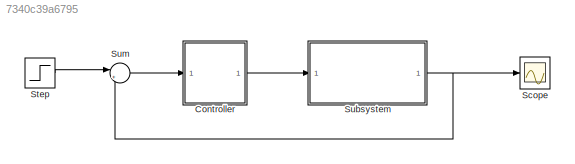
MODEL slx_7340c39a6795
KIND model
CONFIG AbsTol = auto
CONFIG EnableMultiTasking = off
CONFIG FixedStep = auto
CONFIG MaxStep = auto
CONFIG MinStep = auto
CONFIG RelTol = 1e-3
CONFIG SampleTimeConstraint = Unconstrained
CONFIG Solver = ode45
CONFIG SolverName = ode45
CONFIG StartTime = 0.0
CONFIG StopTime = 0.2
WORKSPACE source: mxarray member
WORKSPACE K = 0.0274
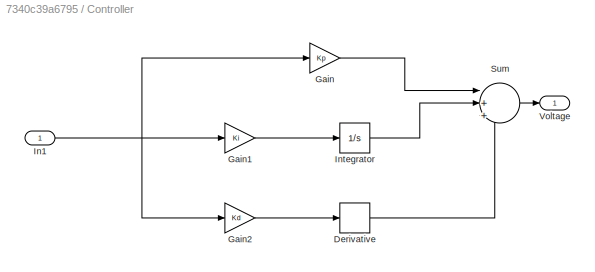
BLOCK [SubSystem] Controller
  Ports = [1, 1]
  RequestExecContextInheritance = off
BLOCK [Derivative] Controller/Derivative
BLOCK [Gain] Controller/Gain
  Gain = Kp
BLOCK [Gain] Controller/Gain1
  Gain = Ki
BLOCK [Gain] Controller/Gain2
  Gain = Kd
BLOCK [Inport] Controller/In1
BLOCK [Integrator] Controller/Integrator
  Ports = [1, 1]
BLOCK [Sum] Controller/Sum
  Inputs = |+++
  Ports = [3, 1]
BLOCK [Outport] Controller/Voltage
BLOCK [Scope] Scope
  Floating = off
  NumInputPorts = 1
  Ports = [1]
  ScopeSpecificationString = Simulink.scopes.TimeScopeBlockCfg('CurrentConfiguration', extmgr.ConfigurationSet(extmgr.Configuration('Core','General UI',true),extmgr.Configuration('Core','Source UI',true),extmgr.Configuration('Sources','WiredSimulink',true),extmgr.Configuration('Visuals','Time Domain',true,'SerializedDisplays',{struct('MinYLimReal','-3416848212.59053','MaxYLimReal','30751633913.31479','YLabelReal','','MinYLimM...<+1403ch>
BLOCK [Step] Step
  SampleTime = 0
  Time = 0
BLOCK [ModelReference] Subsystem
  ModelNameDialog = Subsystem
  ModelReferenceVersion = 1.10
  Ports = [1, 1]
BLOCK [Sum] Sum
  Inputs = |++
  Ports = [2, 1]
LINE Controller/Derivative:1 -> Controller/Sum:3
LINE Controller/Gain1:1 -> Controller/Integrator:1
LINE Controller/Gain2:1 -> Controller/Derivative:1
LINE Controller/Gain:1 -> Controller/Sum:1
NET Controller/In1:1 -> Controller/Gain1:1, Controller/Gain2:1, Controller/Gain:1
LINE Controller/Integrator:1 -> Controller/Sum:2
LINE Controller/Sum:1 -> Controller/Voltage:1
LINE Controller:1 -> Subsystem:1
LINE Step:1 -> Sum:1
NET Subsystem:1 -> Scope:1, Sum:2
LINE Sum:1 -> Controller:1
note: NET lines group one-source signal fan-out (src -> all destinations, sorted); 1:1 wires keep LINE
